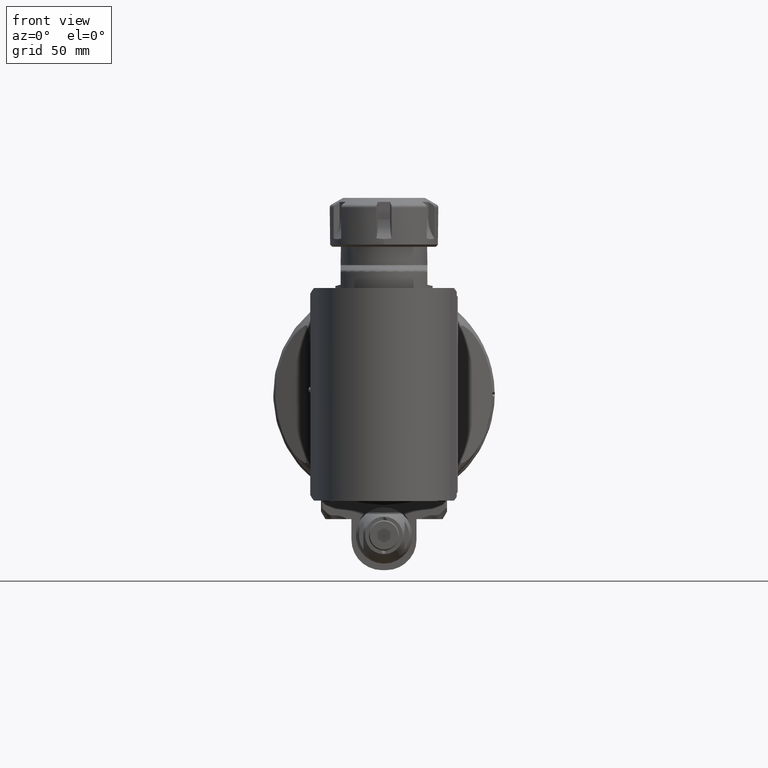
[diagram: clean part render]
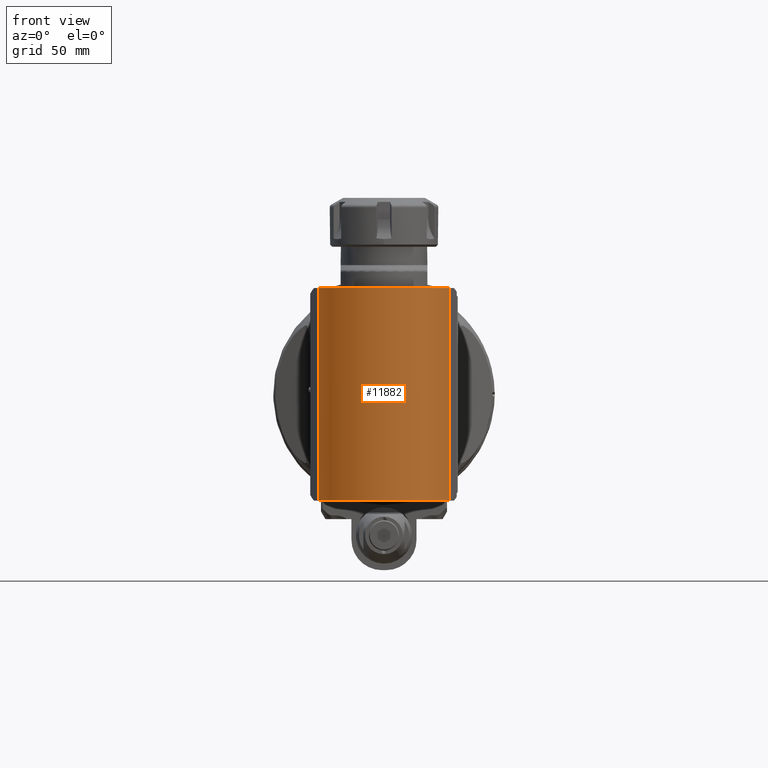
[diagram: same view with one face highlighted and labeled with its STEP entity id]
A machine part, front view. The second image highlights one B-rep face of the part: STEP entity #11882.
In plain terms, the highlighted cylindrical surface (partial cylindrical patch) has radius 31 mm, axis along (-0, 0, -1).
Its self-contained STEP definition (entity closure, byte-faithful):
#851=LINE('',#17522,#1738);
#854=LINE('',#17590,#1741);
#1738=VECTOR('',#13991,98.);
#1741=VECTOR('',#14010,98.);
#2604=CYLINDRICAL_SURFACE('',#12683,31.);
#2781=FACE_OUTER_BOUND('',#3450,.T.);
#3450=EDGE_LOOP('',(#8001,#8002,#8003,#8004));
#4208=CIRCLE('',#12681,31.);
#4210=CIRCLE('',#12684,31.);
#4820=VERTEX_POINT('',#17519);
#4821=VERTEX_POINT('',#17521);
#4826=VERTEX_POINT('',#17547);
#4837=VERTEX_POINT('',#17589);
#6109=EDGE_CURVE('',#4821,#4820,#851,.T.);
#6117=EDGE_CURVE('',#4821,#4826,#4208,.T.);
#6129=EDGE_CURVE('',#4837,#4826,#854,.T.);
#6130=EDGE_CURVE('',#4837,#4820,#4210,.T.);
#8001=ORIENTED_EDGE('',*,*,#6129,.T.);
#8002=ORIENTED_EDGE('',*,*,#6117,.F.);
#8003=ORIENTED_EDGE('',*,*,#6109,.T.);
#8004=ORIENTED_EDGE('',*,*,#6130,.F.);
#11882=ADVANCED_FACE('',(#2781),#2604,.T.);
#12681=AXIS2_PLACEMENT_3D('',#17548,#14003,#14004);
#12683=AXIS2_PLACEMENT_3D('',#17588,#14008,#14009);
#12684=AXIS2_PLACEMENT_3D('',#17591,#14011,#14012);
#13991=DIRECTION('',(0.,1.,0.));
#14003=DIRECTION('center_axis',(0.,-1.,0.));
#14004=DIRECTION('ref_axis',(0.207911690816993,0.,-0.978147600733968));
#14008=DIRECTION('center_axis',(0.,1.,0.));
#14009=DIRECTION('ref_axis',(1.,0.,0.));
#14010=DIRECTION('',(0.,-1.,0.));
#14011=DIRECTION('center_axis',(0.,1.,0.));
#14012=DIRECTION('ref_axis',(0.207911690816993,0.,0.978147600733968));
#17519=CARTESIAN_POINT('',(284.5083594153,49.,-30.32257562275));
#17521=CARTESIAN_POINT('',(284.5083594153,-49.,-30.32257562275));
#17522=CARTESIAN_POINT('',(284.5083594153,-49.,-30.32257562275));
#17547=CARTESIAN_POINT('',(284.5083594153,-49.,30.32257562275));
#17548=CARTESIAN_POINT('Origin',(278.063097,-49.,0.));
#17588=CARTESIAN_POINT('Origin',(278.063097,49.,0.));
#17589=CARTESIAN_POINT('',(284.5083594153,49.,30.32257562275));
#17590=CARTESIAN_POINT('',(284.5083594153,49.,30.32257562275));
#17591=CARTESIAN_POINT('Origin',(278.063097,49.,0.));